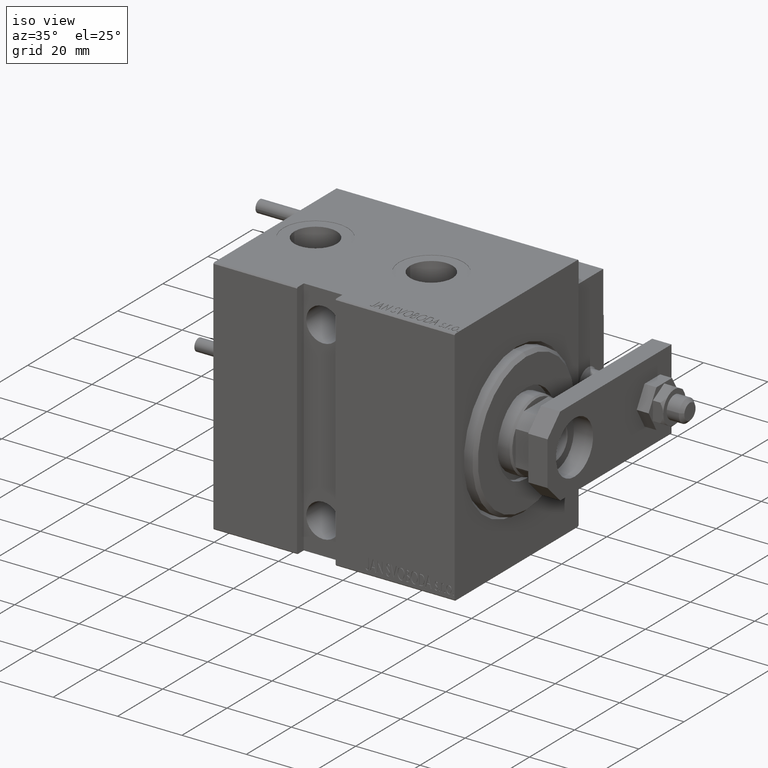
[diagram: clean part render]
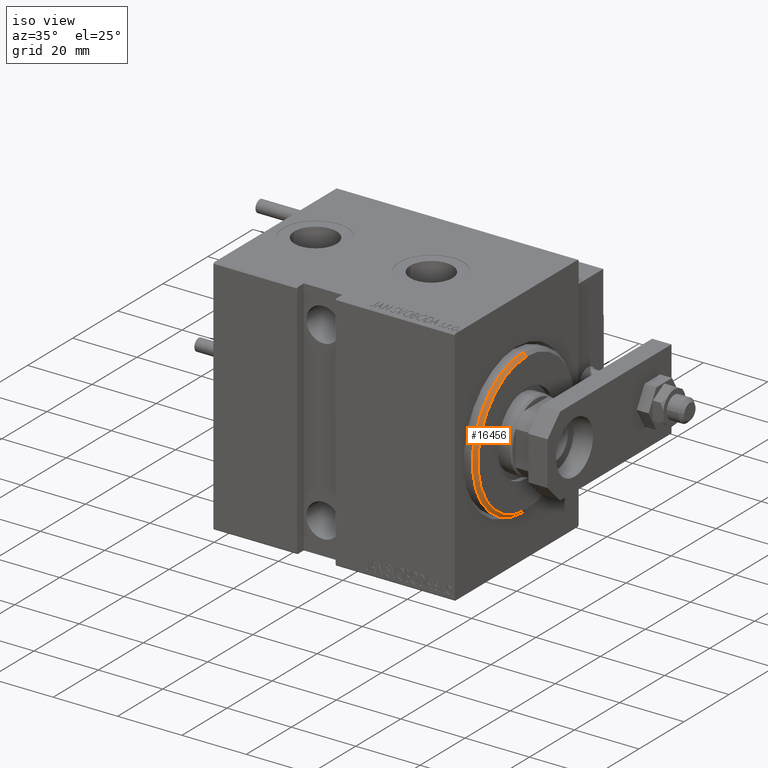
[diagram: same view with one face highlighted and labeled with its STEP entity id]
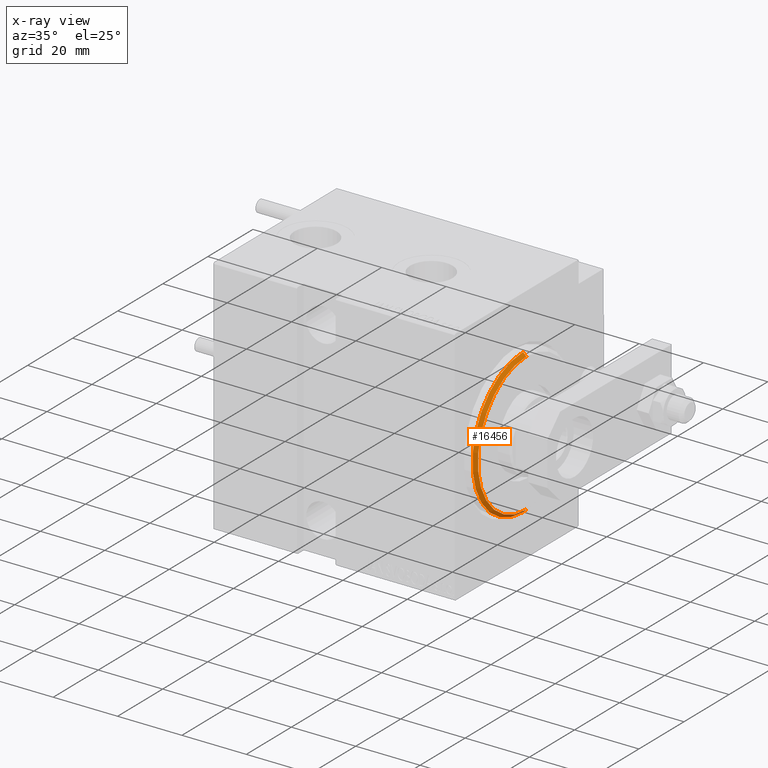
[diagram: x-ray of the same camera — body ghosted, the highlighted face saturated]
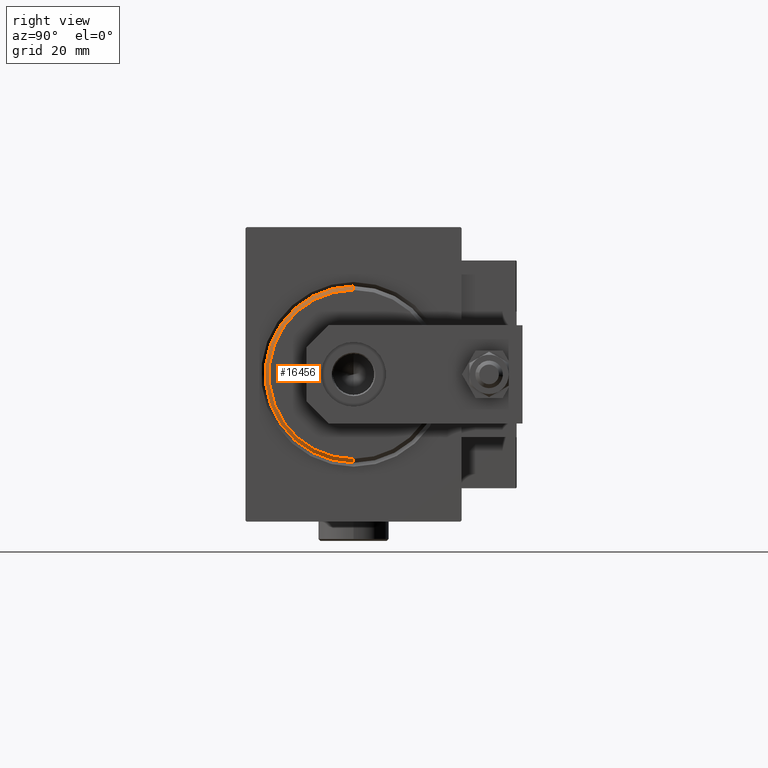
[diagram: same view with one face highlighted and labeled with its STEP entity id]
A machine part, iso view. The second image highlights one B-rep face of the part: STEP entity #16456.
The next image is the same camera in x-ray: the body ghosted, the highlighted face saturated — about 0% of this face is hidden behind the body in this view.
A second angle (right view) of the same face is appended — the face is thin or edge-on in the first view.
In plain terms, the highlighted conical surface has half-angle 45 deg.
Its self-contained STEP definition (entity closure, byte-faithful):
#466 = CARTESIAN_POINT ( 'NONE',  ( 3.000000000000000000, 0.000000000000000000, 21.49999999999998579 ) ) ;
#640 = AXIS2_PLACEMENT_3D ( 'NONE', #31858, #43711, #16402 ) ;
#1672 = CARTESIAN_POINT ( 'NONE',  ( 3.000000000000000000, 0.000000000000000000, 21.49999999999998579 ) ) ;
#2477 = LINE ( 'NONE', #10488, #38155 ) ;
#2970 = VERTEX_POINT ( 'NONE', #18629 ) ;
#5585 = CIRCLE ( 'NONE', #640, 21.49999999999998579 ) ;
#7268 = ORIENTED_EDGE ( 'NONE', *, *, #50653, .F. ) ;
#7816 = EDGE_LOOP ( 'NONE', ( #7268, #29743, #26828, #39972 ) ) ;
#9149 = CARTESIAN_POINT ( 'NONE',  ( 3.000000000000000000, 0.000000000000000000, 0.000000000000000000 ) ) ;
#9403 = DIRECTION ( 'NONE',  ( 0.000000000000000000, 0.000000000000000000, 1.000000000000000000 ) ) ;
#10044 = EDGE_CURVE ( 'NONE', #17263, #27695, #5585, .T. ) ;
#10488 = CARTESIAN_POINT ( 'NONE',  ( 3.000000000000000000, 2.632990618166807263E-15, -21.49999999999998579 ) ) ;
#10715 = CARTESIAN_POINT ( 'NONE',  ( 3.000000000000000000, 2.694222958124176415E-15, -21.49999999999998579 ) ) ;
#11464 = AXIS2_PLACEMENT_3D ( 'NONE', #9149, #28704, #9403 ) ;
#13033 = DIRECTION ( 'NONE',  ( -0.7071067811865487940, 0.000000000000000000, 0.7071067811865463515 ) ) ;
#16402 = DIRECTION ( 'NONE',  ( 0.000000000000000000, 0.000000000000000000, -1.000000000000000000 ) ) ;
#16456 = ADVANCED_FACE ( 'NONE', ( #48289 ), #18008, .T. ) ;
#17011 = DIRECTION ( 'NONE',  ( -1.000000000000000000, 0.000000000000000000, 0.000000000000000000 ) ) ;
#17263 = VERTEX_POINT ( 'NONE', #466 ) ;
#18008 = CONICAL_SURFACE ( 'NONE', #11464, 21.49999999999998579, 0.7853981633974466137 ) ;
#18223 = VERTEX_POINT ( 'NONE', #38805 ) ;
#18629 = CARTESIAN_POINT ( 'NONE',  ( 1.999999999999978462, 2.755455298081545172E-15, -22.50000000000000355 ) ) ;
#19252 = EDGE_CURVE ( 'NONE', #17263, #18223, #37213, .T. ) ;
#25399 = EDGE_CURVE ( 'NONE', #2970, #18223, #33479, .T. ) ;
#26828 = ORIENTED_EDGE ( 'NONE', *, *, #19252, .T. ) ;
#27695 = VERTEX_POINT ( 'NONE', #10715 ) ;
#28704 = DIRECTION ( 'NONE',  ( -1.000000000000000000, 0.000000000000000000, 0.000000000000000000 ) ) ;
#29743 = ORIENTED_EDGE ( 'NONE', *, *, #10044, .F. ) ;
#31858 = CARTESIAN_POINT ( 'NONE',  ( 3.000000000000000000, 0.000000000000000000, 0.000000000000000000 ) ) ;
#33221 = DIRECTION ( 'NONE',  ( 0.000000000000000000, 0.000000000000000000, -1.000000000000000000 ) ) ;
#33479 = CIRCLE ( 'NONE', #35959, 22.50000000000000355 ) ;
#34686 = DIRECTION ( 'NONE',  ( -0.7071067811865487940, 8.659560562354918067E-17, -0.7071067811865463515 ) ) ;
#35959 = AXIS2_PLACEMENT_3D ( 'NONE', #37077, #17011, #33221 ) ;
#37077 = CARTESIAN_POINT ( 'NONE',  ( 1.999999999999978462, 0.000000000000000000, 0.000000000000000000 ) ) ;
#37213 = LINE ( 'NONE', #1672, #47261 ) ;
#38155 = VECTOR ( 'NONE', #34686, 1000.000000000000000 ) ;
#38805 = CARTESIAN_POINT ( 'NONE',  ( 1.999999999999978462, 0.000000000000000000, 22.50000000000000355 ) ) ;
#39972 = ORIENTED_EDGE ( 'NONE', *, *, #25399, .F. ) ;
#43711 = DIRECTION ( 'NONE',  ( 1.000000000000000000, -0.000000000000000000, 0.000000000000000000 ) ) ;
#47261 = VECTOR ( 'NONE', #13033, 1000.000000000000000 ) ;
#48289 = FACE_OUTER_BOUND ( 'NONE', #7816, .T. ) ;
#50653 = EDGE_CURVE ( 'NONE', #27695, #2970, #2477, .T. ) ;